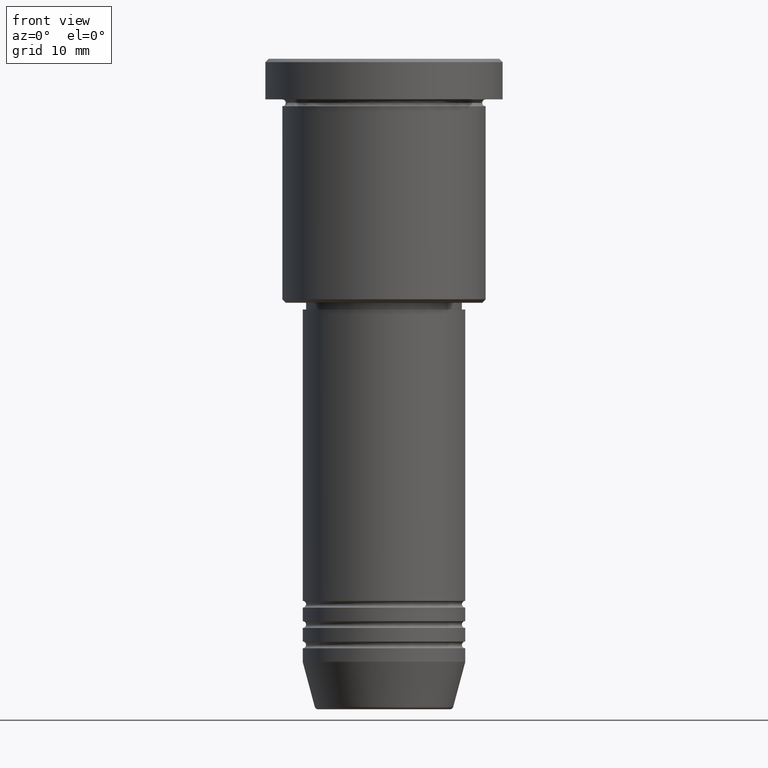
[diagram: clean part render]
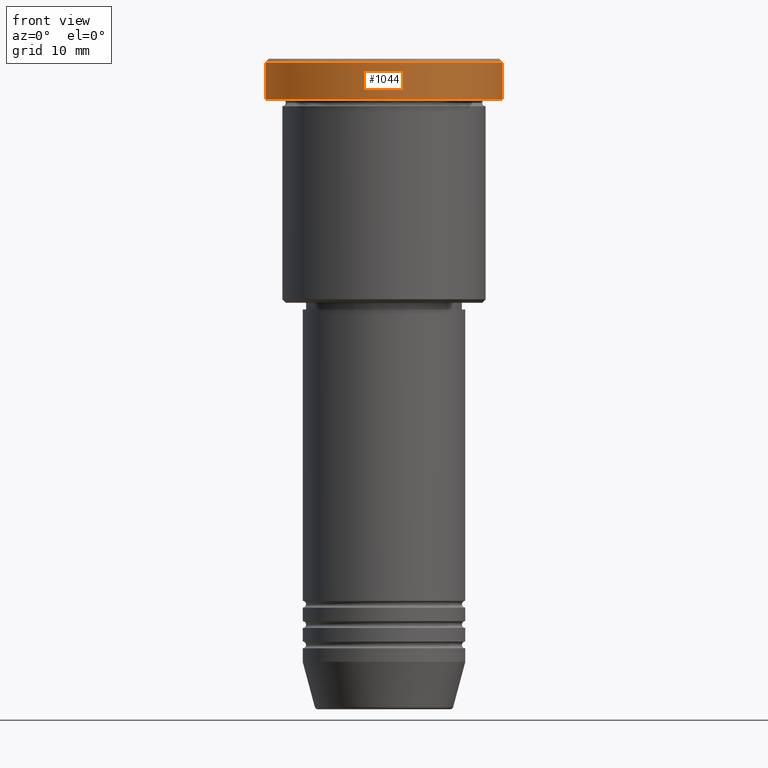
[diagram: same view with one face highlighted and labeled with its STEP entity id]
A machine part, front view. The second image highlights one B-rep face of the part: STEP entity #1044.
In plain terms, the highlighted cylindrical surface (partial cylindrical patch) has radius 17.5 mm, axis along (-0, -0, 1).
Its self-contained STEP definition (entity closure, byte-faithful):
#5 = CARTESIAN_POINT ( 'NONE',  ( -17.50000000000000000, 2.143131898507868248E-15, -5.999999999999995559 ) ) ;
#64 = DIRECTION ( 'NONE',  ( 1.000000000000000000, 0.000000000000000000, 0.000000000000000000 ) ) ;
#70 = DIRECTION ( 'NONE',  ( -0.000000000000000000, -0.000000000000000000, 1.000000000000000000 ) ) ;
#120 = VERTEX_POINT ( 'NONE', #167 ) ;
#131 = DIRECTION ( 'NONE',  ( -0.000000000000000000, -0.000000000000000000, 1.000000000000000000 ) ) ;
#150 = DIRECTION ( 'NONE',  ( -0.000000000000000000, -0.000000000000000000, 1.000000000000000000 ) ) ;
#167 = CARTESIAN_POINT ( 'NONE',  ( 17.50000000000000000, 0.000000000000000000, -0.4999999999999866773 ) ) ;
#188 = LINE ( 'NONE', #823, #1141 ) ;
#217 = ORIENTED_EDGE ( 'NONE', *, *, #307, .T. ) ;
#254 = DIRECTION ( 'NONE',  ( -0.000000000000000000, -0.000000000000000000, 1.000000000000000000 ) ) ;
#307 = EDGE_CURVE ( 'NONE', #120, #1046, #840, .T. ) ;
#359 = DIRECTION ( 'NONE',  ( 1.000000000000000000, 0.000000000000000000, 0.000000000000000000 ) ) ;
#421 = CYLINDRICAL_SURFACE ( 'NONE', #802, 17.50000000000000000 ) ;
#509 = CIRCLE ( 'NONE', #937, 17.50000000000000000 ) ;
#512 = VERTEX_POINT ( 'NONE', #710 ) ;
#515 = FACE_OUTER_BOUND ( 'NONE', #994, .T. ) ;
#537 = ORIENTED_EDGE ( 'NONE', *, *, #642, .T. ) ;
#564 = VERTEX_POINT ( 'NONE', #5 ) ;
#583 = ORIENTED_EDGE ( 'NONE', *, *, #1027, .T. ) ;
#596 = ORIENTED_EDGE ( 'NONE', *, *, #676, .F. ) ;
#599 = CARTESIAN_POINT ( 'NONE',  ( 0.000000000000000000, 0.000000000000000000, -5.999999999999995559 ) ) ;
#613 = CARTESIAN_POINT ( 'NONE',  ( 0.000000000000000000, 0.000000000000000000, 0.000000000000000000 ) ) ;
#639 = CARTESIAN_POINT ( 'NONE',  ( 0.000000000000000000, 0.000000000000000000, -0.4999999999999866773 ) ) ;
#642 = EDGE_CURVE ( 'NONE', #512, #120, #188, .T. ) ;
#665 = AXIS2_PLACEMENT_3D ( 'NONE', #639, #811, #359 ) ;
#676 = EDGE_CURVE ( 'NONE', #564, #1046, #719, .T. ) ;
#695 = DIRECTION ( 'NONE',  ( 1.000000000000000000, 0.000000000000000000, 0.000000000000000000 ) ) ;
#710 = CARTESIAN_POINT ( 'NONE',  ( 17.50000000000000000, 0.000000000000000000, -5.999999999999995559 ) ) ;
#719 = LINE ( 'NONE', #977, #872 ) ;
#786 = CARTESIAN_POINT ( 'NONE',  ( -17.50000000000000000, 2.143131898507868248E-15, -0.4999999999999866773 ) ) ;
#802 = AXIS2_PLACEMENT_3D ( 'NONE', #613, #70, #64 ) ;
#811 = DIRECTION ( 'NONE',  ( 0.000000000000000000, 0.000000000000000000, -1.000000000000000000 ) ) ;
#823 = CARTESIAN_POINT ( 'NONE',  ( 17.50000000000000000, 0.000000000000000000, 0.000000000000000000 ) ) ;
#840 = CIRCLE ( 'NONE', #665, 17.50000000000000000 ) ;
#872 = VECTOR ( 'NONE', #254, 1000.000000000000000 ) ;
#937 = AXIS2_PLACEMENT_3D ( 'NONE', #599, #150, #695 ) ;
#977 = CARTESIAN_POINT ( 'NONE',  ( -17.50000000000000000, 2.143131898507868248E-15, 0.000000000000000000 ) ) ;
#994 = EDGE_LOOP ( 'NONE', ( #596, #583, #537, #217 ) ) ;
#1027 = EDGE_CURVE ( 'NONE', #564, #512, #509, .T. ) ;
#1044 = ADVANCED_FACE ( 'NONE', ( #515 ), #421, .T. ) ;
#1046 = VERTEX_POINT ( 'NONE', #786 ) ;
#1141 = VECTOR ( 'NONE', #131, 1000.000000000000000 ) ;